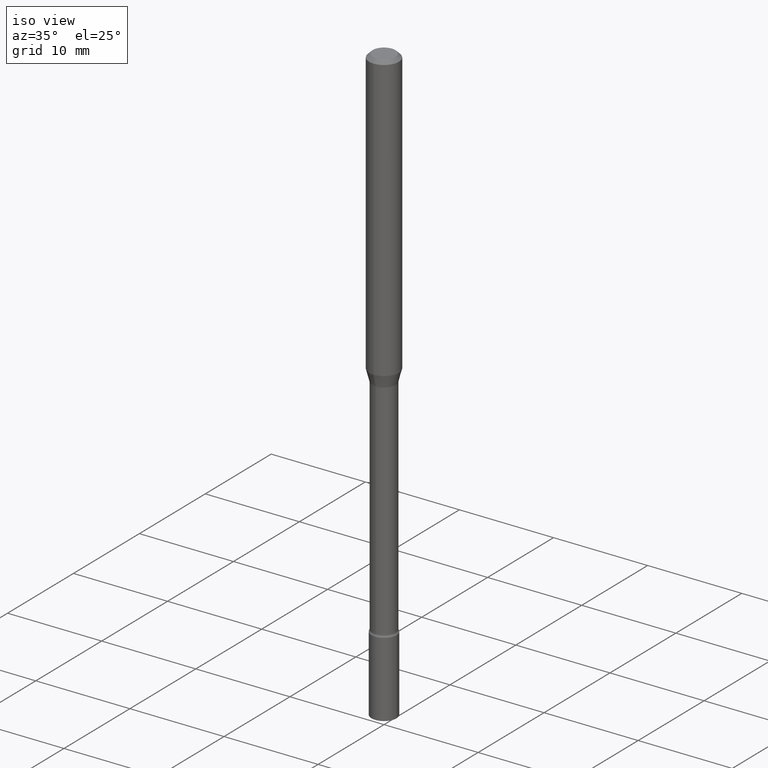
[diagram: clean part render]
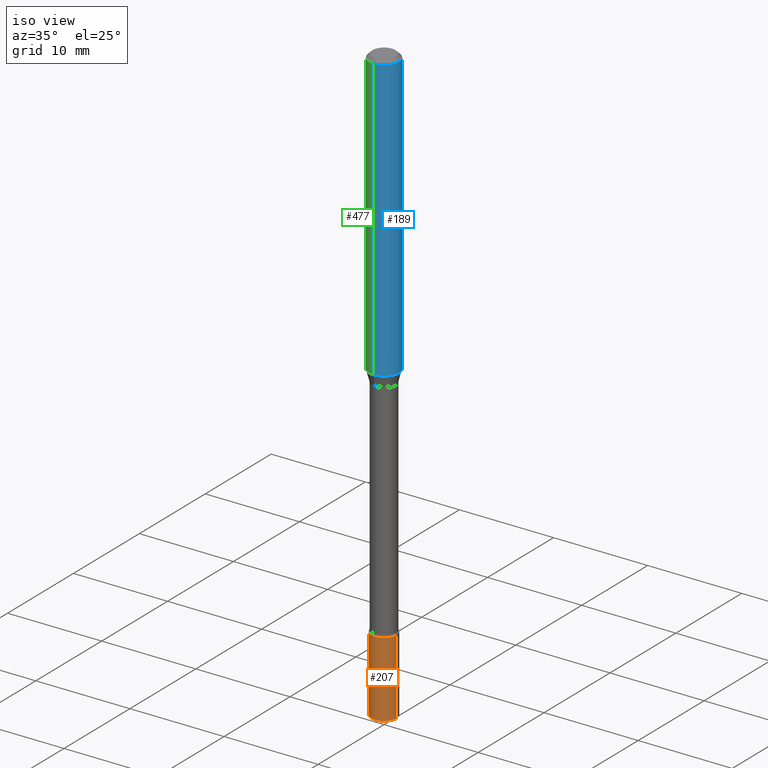
[diagram: same view with three faces highlighted in distinct colors, each labeled with its STEP entity id]
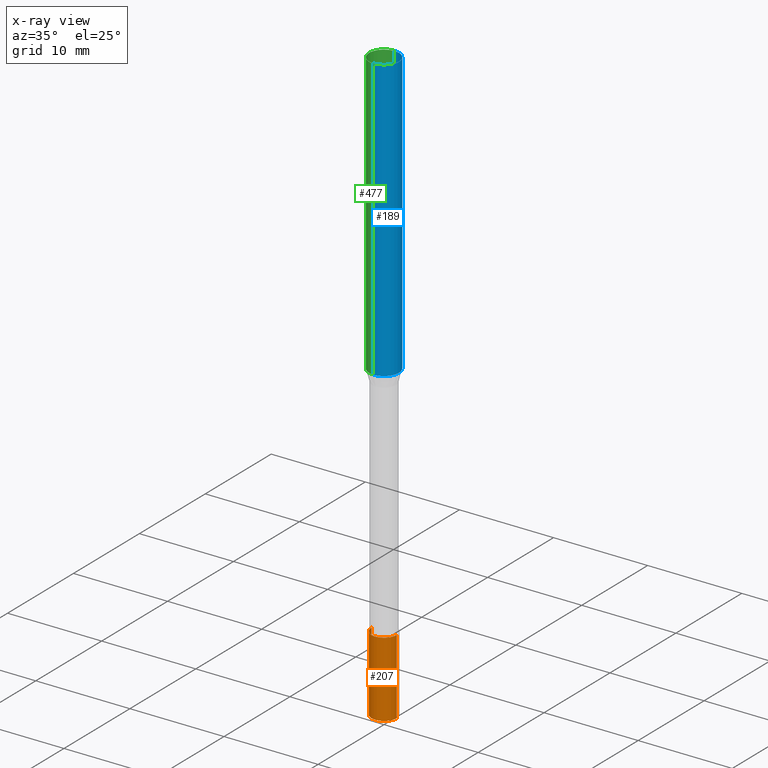
[diagram: x-ray of the same camera — body ghosted, the three highlighted faces saturated]
A machine part, iso view with three faces highlighted in distinct colors.
The next image is the same camera in x-ray (body ghosted, the three faces saturated) — at least one of them is partly hidden behind the body in this view.
Their STEP definitions:

[orange] entity #207 — the highlighted cylindrical surface (edge-blend (fillet) strip) has radius 1.3335 mm, axis along (-0, 0, 1).
#5 = DIRECTION ( 'NONE',  ( 1.000000000000000000, -6.982962677686268288E-15, 0.000000000000000000 ) ) ;
#35 = CARTESIAN_POINT ( 'NONE',  ( 6.113672015462842613E-29, -8.728703347107864943E-15, -2.500000000000000000 ) ) ;
#48 = DIRECTION ( 'NONE',  ( 1.000000000000000000, -6.982962677686268288E-15, 0.000000000000000000 ) ) ;
#68 = ORIENTED_EDGE ( 'NONE', *, *, #228, .T. ) ;
#72 = DIRECTION ( 'NONE',  ( -2.445468806185136597E-29, 3.491481338843145583E-15, 1.000000000000000000 ) ) ;
#75 = ORIENTED_EDGE ( 'NONE', *, *, #210, .T. ) ;
#104 = VERTEX_POINT ( 'NONE', #359 ) ;
#109 = CIRCLE ( 'NONE', #246, 0.05249999999999999806 ) ;
#139 = VERTEX_POINT ( 'NONE', #374 ) ;
#143 = ORIENTED_EDGE ( 'NONE', *, *, #312, .F. ) ;
#144 = CYLINDRICAL_SURFACE ( 'NONE', #316, 0.05249999999999999806 ) ;
#181 = EDGE_CURVE ( 'NONE', #104, #139, #453, .T. ) ;
#182 = ORIENTED_EDGE ( 'NONE', *, *, #181, .F. ) ;
#188 = EDGE_LOOP ( 'NONE', ( #182, #75, #68, #143 ) ) ;
#193 = CARTESIAN_POINT ( 'NONE',  ( 5.343349341514523419E-29, -7.628886725372273518E-15, -2.185000000000000053 ) ) ;
#207 = ADVANCED_FACE ( 'NONE', ( #267 ), #144, .T. ) ;
#210 = EDGE_CURVE ( 'NONE', #104, #261, #274, .T. ) ;
#225 = DIRECTION ( 'NONE',  ( 1.000000000000000000, -6.982962677686265922E-15, 4.876176775795935232E-29 ) ) ;
#228 = EDGE_CURVE ( 'NONE', #261, #491, #327, .T. ) ;
#239 = VECTOR ( 'NONE', #406, 39.37007874015748143 ) ;
#246 = AXIS2_PLACEMENT_3D ( 'NONE', #193, #362, #5 ) ;
#259 = DIRECTION ( 'NONE',  ( -2.445468806185136877E-29, 3.491481338843145188E-15, 1.000000000000000000 ) ) ;
#261 = VERTEX_POINT ( 'NONE', #448 ) ;
#267 = FACE_OUTER_BOUND ( 'NONE', #188, .T. ) ;
#274 = CIRCLE ( 'NONE', #496, 0.05249999999999999806 ) ;
#302 = VECTOR ( 'NONE', #259, 39.37007874015748143 ) ;
#312 = EDGE_CURVE ( 'NONE', #139, #491, #109, .T. ) ;
#314 = CARTESIAN_POINT ( 'NONE',  ( 0.000000000000000000, 0.000000000000000000, 0.000000000000000000 ) ) ;
#316 = AXIS2_PLACEMENT_3D ( 'NONE', #314, #72, #225 ) ;
#327 = LINE ( 'NONE', #408, #239 ) ;
#354 = DIRECTION ( 'NONE',  ( -2.445468806185136597E-29, 3.491481338843145583E-15, 1.000000000000000000 ) ) ;
#359 = CARTESIAN_POINT ( 'NONE',  ( -0.05249999999999999806, -7.805760099966015907E-15, -2.500000000000000000 ) ) ;
#362 = DIRECTION ( 'NONE',  ( -2.445468806185136597E-29, 3.491481338843145583E-15, 1.000000000000000000 ) ) ;
#373 = CARTESIAN_POINT ( 'NONE',  ( -0.05249999999999999806, 3.730349362740525838E-16, -2.582440922383825311E-30 ) ) ;
#374 = CARTESIAN_POINT ( 'NONE',  ( -0.05249999999999999806, -7.805760099966015907E-15, -2.185000000000000053 ) ) ;
#389 = CARTESIAN_POINT ( 'NONE',  ( 0.05249999999999999806, -7.995492265950801889E-15, -2.185000000000000053 ) ) ;
#406 = DIRECTION ( 'NONE',  ( -2.445468806185136877E-29, 3.491481338843145188E-15, 1.000000000000000000 ) ) ;
#408 = CARTESIAN_POINT ( 'NONE',  ( 0.05249999999999999806, -3.666055405785289629E-16, 2.559992807292866011E-30 ) ) ;
#448 = CARTESIAN_POINT ( 'NONE',  ( 0.05249999999999999806, -9.095308887686393314E-15, -2.500000000000000000 ) ) ;
#453 = LINE ( 'NONE', #373, #302 ) ;
#491 = VERTEX_POINT ( 'NONE', #389 ) ;
#496 = AXIS2_PLACEMENT_3D ( 'NONE', #35, #354, #48 ) ;

[blue] entity #189 — the highlighted cylindrical surface (edge-blend (fillet) strip) has radius 1.5875 mm, axis along (-0, 0, 1).
#2 = DIRECTION ( 'NONE',  ( -2.445520985940989068E-29, 3.491406614462877514E-15, 1.000000000000000000 ) ) ;
#3 = CYLINDRICAL_SURFACE ( 'NONE', #147, 0.06250000000000000000 ) ;
#4 = CARTESIAN_POINT ( 'NONE',  ( 4.440892098500918040E-16, 0.06249999999999587830, -1.191123531880469821 ) ) ;
#21 = CARTESIAN_POINT ( 'NONE',  ( -4.364351673553623336E-16, -0.06250000000000412170, -1.191123531880469377 ) ) ;
#57 = CARTESIAN_POINT ( 'NONE',  ( -4.364351673553916201E-16, -0.06250000000000000000, 2.182129134039298446E-16 ) ) ;
#63 = ORIENTED_EDGE ( 'NONE', *, *, #449, .T. ) ;
#64 = CARTESIAN_POINT ( 'NONE',  ( -4.364351673553912750E-16, -0.06250000000000005551, -0.01499999999999981209 ) ) ;
#71 = ORIENTED_EDGE ( 'NONE', *, *, #241, .F. ) ;
#84 = AXIS2_PLACEMENT_3D ( 'NONE', #281, #163, #404 ) ;
#87 = DIRECTION ( 'NONE',  ( -6.982962677686265922E-15, -1.000000000000000000, 4.370956789862821150E-15 ) ) ;
#128 = CIRCLE ( 'NONE', #517, 0.06250000000000000000 ) ;
#135 = VECTOR ( 'NONE', #340, 39.37007874015748143 ) ;
#138 = VERTEX_POINT ( 'NONE', #4 ) ;
#147 = AXIS2_PLACEMENT_3D ( 'NONE', #162, #191, #307 ) ;
#162 = CARTESIAN_POINT ( 'NONE',  ( 0.000000000000000000, 0.000000000000000000, 0.000000000000000000 ) ) ;
#163 = DIRECTION ( 'NONE',  ( -2.445520985940989068E-29, 3.491406614462877514E-15, 1.000000000000000000 ) ) ;
#165 = VERTEX_POINT ( 'NONE', #186 ) ;
#174 = DIRECTION ( 'NONE',  ( -2.445520985940989068E-29, 3.491406614462877514E-15, 1.000000000000000000 ) ) ;
#186 = CARTESIAN_POINT ( 'NONE',  ( 4.440892098500919026E-16, 0.06249999999999995837, -0.01500000000000024751 ) ) ;
#189 = ADVANCED_FACE ( 'NONE', ( #223 ), #3, .T. ) ;
#191 = DIRECTION ( 'NONE',  ( -2.445520985940989068E-29, 3.491406614462877514E-15, 1.000000000000000000 ) ) ;
#211 = CARTESIAN_POINT ( 'NONE',  ( 4.440892098500625669E-16, 0.06250000000000000000, -2.182129134039298446E-16 ) ) ;
#223 = FACE_OUTER_BOUND ( 'NONE', #344, .T. ) ;
#241 = EDGE_CURVE ( 'NONE', #403, #165, #451, .T. ) ;
#257 = ORIENTED_EDGE ( 'NONE', *, *, #342, .F. ) ;
#262 = VECTOR ( 'NONE', #174, 39.37007874015748143 ) ;
#281 = CARTESIAN_POINT ( 'NONE',  ( 3.668281478911491082E-31, -5.237109921694327463E-17, -0.01500000000000003067 ) ) ;
#288 = EDGE_CURVE ( 'NONE', #493, #138, #128, .T. ) ;
#307 = DIRECTION ( 'NONE',  ( -6.982962677686265922E-15, -1.000000000000000000, 3.491406614462877514E-15 ) ) ;
#335 = LINE ( 'NONE', #57, #262 ) ;
#340 = DIRECTION ( 'NONE',  ( -2.445520985940989068E-29, 3.491406614462877514E-15, 1.000000000000000000 ) ) ;
#342 = EDGE_CURVE ( 'NONE', #493, #403, #335, .T. ) ;
#344 = EDGE_LOOP ( 'NONE', ( #473, #63, #71, #257 ) ) ;
#376 = LINE ( 'NONE', #211, #135 ) ;
#403 = VERTEX_POINT ( 'NONE', #64 ) ;
#404 = DIRECTION ( 'NONE',  ( -6.982962677686265922E-15, -1.000000000000000000, 3.483106191921935554E-15 ) ) ;
#449 = EDGE_CURVE ( 'NONE', #138, #165, #376, .T. ) ;
#451 = CIRCLE ( 'NONE', #84, 0.06250000000000000000 ) ;
#452 = CARTESIAN_POINT ( 'NONE',  ( 2.912917594061839297E-29, -4.158696577849855606E-15, -1.191123531880469599 ) ) ;
#473 = ORIENTED_EDGE ( 'NONE', *, *, #288, .T. ) ;
#493 = VERTEX_POINT ( 'NONE', #21 ) ;
#517 = AXIS2_PLACEMENT_3D ( 'NONE', #452, #2, #87 ) ;

[green] entity #477 — the highlighted cylindrical surface (edge-blend (fillet) strip) has radius 1.5875 mm, axis along (-0, 0, 1).
#4 = CARTESIAN_POINT ( 'NONE',  ( 4.440892098500918040E-16, 0.06249999999999587830, -1.191123531880469821 ) ) ;
#12 = CIRCLE ( 'NONE', #95, 0.06250000000000000000 ) ;
#21 = CARTESIAN_POINT ( 'NONE',  ( -4.364351673553623336E-16, -0.06250000000000412170, -1.191123531880469377 ) ) ;
#46 = AXIS2_PLACEMENT_3D ( 'NONE', #434, #141, #215 ) ;
#51 = AXIS2_PLACEMENT_3D ( 'NONE', #480, #369, #230 ) ;
#57 = CARTESIAN_POINT ( 'NONE',  ( -4.364351673553916201E-16, -0.06250000000000000000, 2.182129134039298446E-16 ) ) ;
#58 = CIRCLE ( 'NONE', #51, 0.06250000000000000000 ) ;
#64 = CARTESIAN_POINT ( 'NONE',  ( -4.364351673553912750E-16, -0.06250000000000005551, -0.01499999999999981209 ) ) ;
#94 = EDGE_CURVE ( 'NONE', #165, #403, #58, .T. ) ;
#95 = AXIS2_PLACEMENT_3D ( 'NONE', #183, #310, #515 ) ;
#123 = FACE_OUTER_BOUND ( 'NONE', #133, .T. ) ;
#133 = EDGE_LOOP ( 'NONE', ( #184, #504, #383, #313 ) ) ;
#135 = VECTOR ( 'NONE', #340, 39.37007874015748143 ) ;
#138 = VERTEX_POINT ( 'NONE', #4 ) ;
#141 = DIRECTION ( 'NONE',  ( -2.445520985940989068E-29, 3.491406614462877514E-15, 1.000000000000000000 ) ) ;
#165 = VERTEX_POINT ( 'NONE', #186 ) ;
#174 = DIRECTION ( 'NONE',  ( -2.445520985940989068E-29, 3.491406614462877514E-15, 1.000000000000000000 ) ) ;
#183 = CARTESIAN_POINT ( 'NONE',  ( 2.912917594061839297E-29, -4.158696577849855606E-15, -1.191123531880469599 ) ) ;
#184 = ORIENTED_EDGE ( 'NONE', *, *, #449, .F. ) ;
#186 = CARTESIAN_POINT ( 'NONE',  ( 4.440892098500919026E-16, 0.06249999999999995837, -0.01500000000000024751 ) ) ;
#211 = CARTESIAN_POINT ( 'NONE',  ( 4.440892098500625669E-16, 0.06250000000000000000, -2.182129134039298446E-16 ) ) ;
#215 = DIRECTION ( 'NONE',  ( -6.982962677686265922E-15, -1.000000000000000000, 3.491406614462877514E-15 ) ) ;
#230 = DIRECTION ( 'NONE',  ( -6.982962677686265922E-15, -1.000000000000000000, 3.483106191921935554E-15 ) ) ;
#262 = VECTOR ( 'NONE', #174, 39.37007874015748143 ) ;
#310 = DIRECTION ( 'NONE',  ( -2.445520985940989068E-29, 3.491406614462877514E-15, 1.000000000000000000 ) ) ;
#313 = ORIENTED_EDGE ( 'NONE', *, *, #94, .F. ) ;
#335 = LINE ( 'NONE', #57, #262 ) ;
#340 = DIRECTION ( 'NONE',  ( -2.445520985940989068E-29, 3.491406614462877514E-15, 1.000000000000000000 ) ) ;
#341 = CYLINDRICAL_SURFACE ( 'NONE', #46, 0.06250000000000000000 ) ;
#342 = EDGE_CURVE ( 'NONE', #493, #403, #335, .T. ) ;
#369 = DIRECTION ( 'NONE',  ( -2.445520985940989068E-29, 3.491406614462877514E-15, 1.000000000000000000 ) ) ;
#376 = LINE ( 'NONE', #211, #135 ) ;
#383 = ORIENTED_EDGE ( 'NONE', *, *, #342, .T. ) ;
#403 = VERTEX_POINT ( 'NONE', #64 ) ;
#419 = EDGE_CURVE ( 'NONE', #138, #493, #12, .T. ) ;
#434 = CARTESIAN_POINT ( 'NONE',  ( 0.000000000000000000, 0.000000000000000000, 0.000000000000000000 ) ) ;
#449 = EDGE_CURVE ( 'NONE', #138, #165, #376, .T. ) ;
#477 = ADVANCED_FACE ( 'NONE', ( #123 ), #341, .T. ) ;
#480 = CARTESIAN_POINT ( 'NONE',  ( 3.668281478911491082E-31, -5.237109921694327463E-17, -0.01500000000000003067 ) ) ;
#493 = VERTEX_POINT ( 'NONE', #21 ) ;
#504 = ORIENTED_EDGE ( 'NONE', *, *, #419, .T. ) ;
#515 = DIRECTION ( 'NONE',  ( -6.982962677686265922E-15, -1.000000000000000000, 4.370956789862821150E-15 ) ) ;